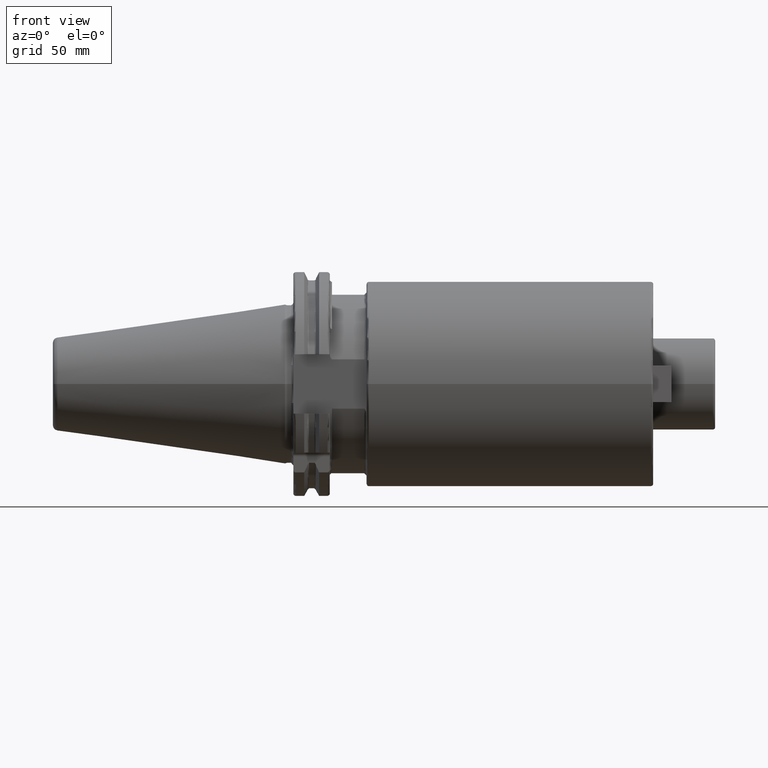
[diagram: clean part render]
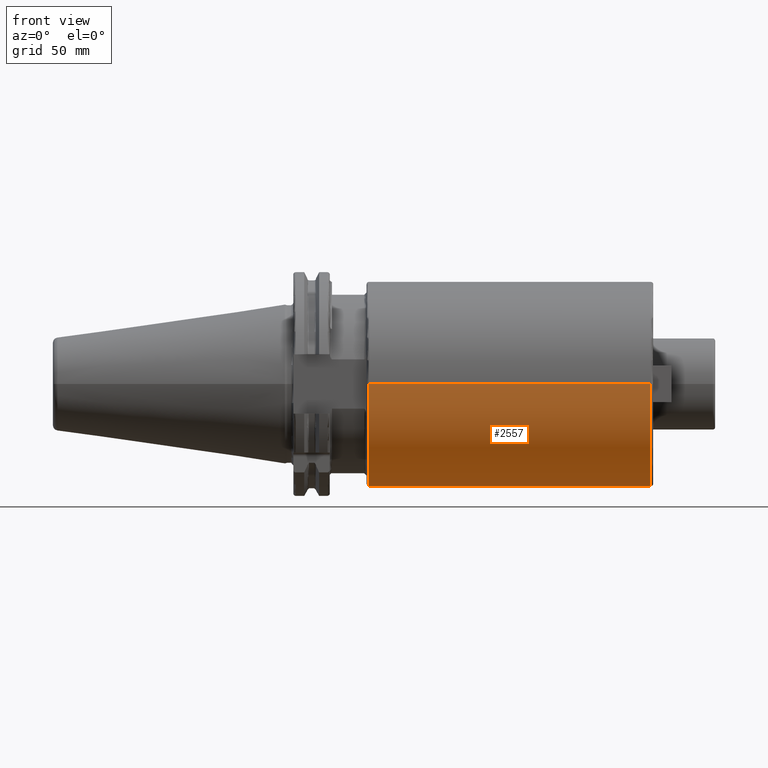
[diagram: same view with one face highlighted and labeled with its STEP entity id]
A machine part, front view. The second image highlights one B-rep face of the part: STEP entity #2557.
In plain terms, the highlighted cylindrical surface (partial cylindrical patch) has radius 44.5 mm, axis along (1, 0, 0).
Its self-contained STEP definition (entity closure, byte-faithful):
#402=CARTESIAN_POINT('',(3.605E1,0.E0,0.E0));
#403=DIRECTION('',(1.E0,0.E0,0.E0));
#404=DIRECTION('',(0.E0,-1.E0,0.E0));
#405=AXIS2_PLACEMENT_3D('',#402,#403,#404);
#407=DIRECTION('',(-1.E0,0.E0,0.E0));
#408=VECTOR('',#407,1.2295E2);
#409=CARTESIAN_POINT('',(1.59E2,-4.45E1,3.168365843636E-13));
#410=LINE('',#409,#408);
#411=CARTESIAN_POINT('',(1.59E2,0.E0,0.E0));
#412=DIRECTION('',(-1.E0,0.E0,0.E0));
#413=DIRECTION('',(0.E0,1.E0,0.E0));
#414=AXIS2_PLACEMENT_3D('',#411,#412,#413);
#416=DIRECTION('',(-1.E0,0.E0,0.E0));
#417=VECTOR('',#416,1.2295E2);
#418=CARTESIAN_POINT('',(1.59E2,4.45E1,-3.379609737659E-13));
#419=LINE('',#418,#417);
#1977=CARTESIAN_POINT('',(1.59E2,4.45E1,0.E0));
#1978=CARTESIAN_POINT('',(1.59E2,-4.45E1,-1.089935651241E-14));
#1979=VERTEX_POINT('',#1977);
#1980=VERTEX_POINT('',#1978);
#2079=CARTESIAN_POINT('',(3.605E1,-4.45E1,-1.089935651241E-14));
#2080=CARTESIAN_POINT('',(3.605E1,4.45E1,0.E0));
#2081=VERTEX_POINT('',#2079);
#2082=VERTEX_POINT('',#2080);
#2543=CARTESIAN_POINT('',(1.06525E1,0.E0,0.E0));
#2544=DIRECTION('',(1.E0,0.E0,0.E0));
#2545=DIRECTION('',(0.E0,-1.E0,0.E0));
#2546=AXIS2_PLACEMENT_3D('',#2543,#2544,#2545);
#2547=CYLINDRICAL_SURFACE('',#2546,4.45E1);
#2548=ORIENTED_EDGE('',*,*,#2533,.F.);
#2550=ORIENTED_EDGE('',*,*,#2549,.F.);
#2552=ORIENTED_EDGE('',*,*,#2551,.F.);
#2554=ORIENTED_EDGE('',*,*,#2553,.T.);
#2555=EDGE_LOOP('',(#2548,#2550,#2552,#2554));
#2556=FACE_OUTER_BOUND('',#2555,.F.);
#2557=ADVANCED_FACE('',(#2556),#2547,.T.);
#406=CIRCLE('',#405,4.45E1);
#415=CIRCLE('',#414,4.45E1);
#2533=EDGE_CURVE('',#2081,#2082,#406,.T.);
#2549=EDGE_CURVE('',#1980,#2081,#410,.T.);
#2551=EDGE_CURVE('',#1979,#1980,#415,.T.);
#2553=EDGE_CURVE('',#1979,#2082,#419,.T.);